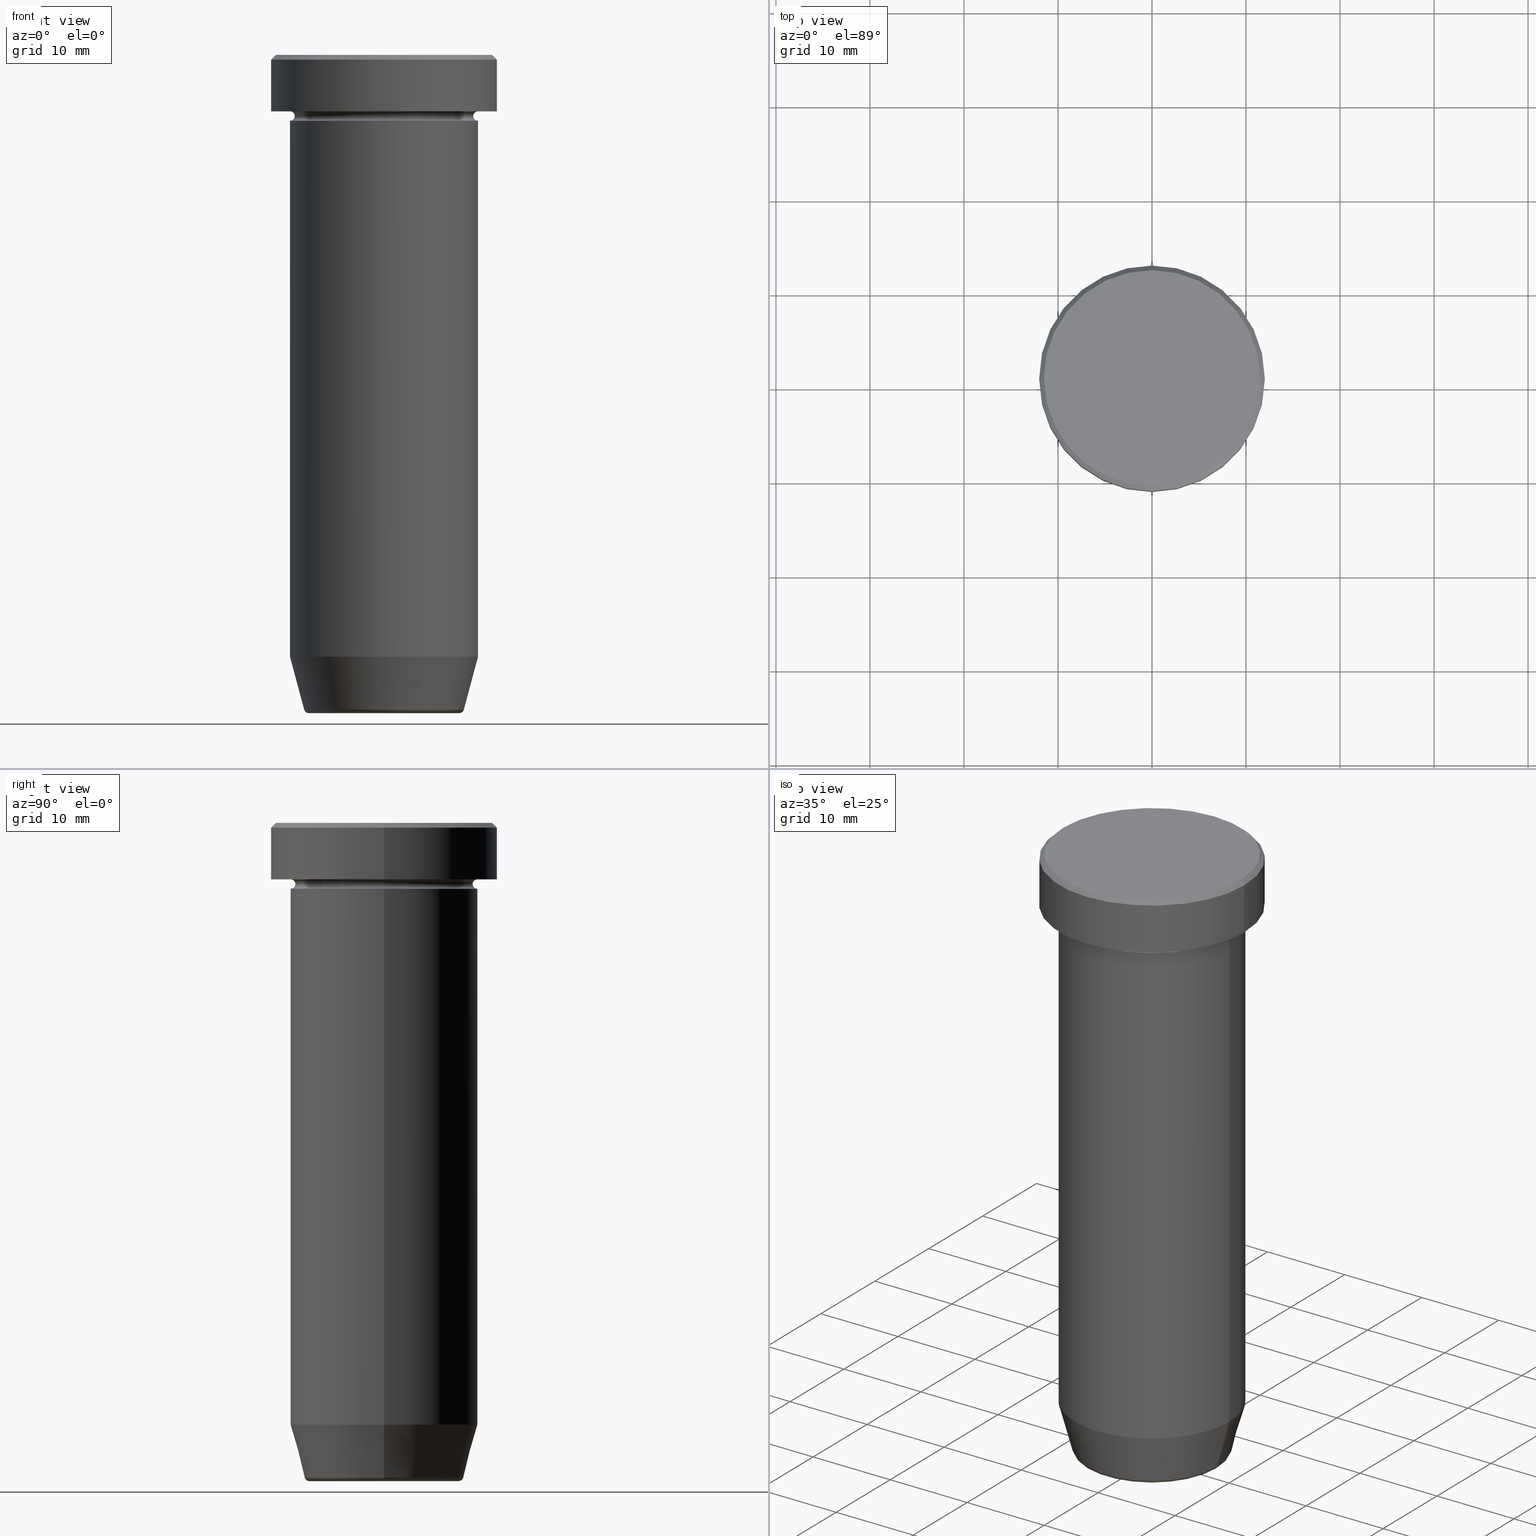
[diagram: canonical four-view strip — front | top / right | iso, engineering-drawing reading convention]
A machine part, canonical four-view strip (front | top / right | iso — engineering-drawing reading convention). The complete STEP part file that produces these views, byte-faithful:
ISO-10303-21;
HEADER;
FILE_DESCRIPTION (( 'STEP AP203' ),
    '1' );
FILE_NAME ('00f0.STEP',
    '2024-01-02T20:49:41',
    ( '' ),
    ( '' ),
    'SwSTEP 2.0',
    'SolidWorks 2019',
    '' );
FILE_SCHEMA (( 'CONFIG_CONTROL_DESIGN' ));
ENDSEC;

DATA;
#1 = DIRECTION ( 'NONE',  ( 0.000000000000000000, 0.000000000000000000, -1.000000000000000000 ) ) ;
#2 = DIRECTION ( 'NONE',  ( 1.000000000000000000, 0.000000000000000000, 0.000000000000000000 ) ) ;
#3 = CONICAL_SURFACE ( 'NONE', #212, 8.392304845413260495, 0.2617993877991495744 ) ;
#4 = APPROVAL_DATE_TIME ( #184, #68 ) ;
#5 = CARTESIAN_POINT ( 'NONE',  ( -9.999999999999998224, 1.224646799147353059E-15, -64.00000000000000000 ) ) ;
#6 = LINE ( 'NONE', #239, #550 ) ;
#7 = CIRCLE ( 'NONE', #414, 0.5000000000000004441 ) ;
#8 = DIRECTION ( 'NONE',  ( 1.000000000000000000, 0.000000000000000000, 0.000000000000000000 ) ) ;
#9 = FACE_OUTER_BOUND ( 'NONE', #29, .T. ) ;
#10 = ORIENTED_EDGE ( 'NONE', *, *, #152, .F. ) ;
#11 = LINE ( 'NONE', #98, #538 ) ;
#12 = ORIENTED_EDGE ( 'NONE', *, *, #391, .F. ) ;
#13 = DIRECTION ( 'NONE',  ( 0.000000000000000000, 0.000000000000000000, -1.000000000000000000 ) ) ;
#14 = APPLICATION_CONTEXT ( 'configuration controlled 3d designs of mechanical parts and assemblies' ) ;
#15 = ADVANCED_FACE ( 'NONE', ( #166 ), #254, .T. ) ;
#16 = AXIS2_PLACEMENT_3D ( 'NONE', #332, #100, #206 ) ;
#17 = DIRECTION ( 'NONE',  ( -1.000000000000000000, 1.224646799147353454E-16, 0.000000000000000000 ) ) ;
#18 = APPROVAL ( #317, 'NEUR�EN�' ) ;
#19 = CARTESIAN_POINT ( 'NONE',  ( 0.000000000000000000, 0.000000000000000000, -70.00000000000000000 ) ) ;
#20 = CARTESIAN_POINT ( 'NONE',  ( 0.000000000000000000, 0.000000000000000000, 0.000000000000000000 ) ) ;
#21 = ORIENTED_EDGE ( 'NONE', *, *, #297, .T. ) ;
#22 = CIRCLE ( 'NONE', #49, 10.00000000000000000 ) ;
#23 = ORIENTED_EDGE ( 'NONE', *, *, #104, .F. ) ;
#24 = VERTEX_POINT ( 'NONE', #272 ) ;
#25 = DIRECTION ( 'NONE',  ( 1.000000000000000000, 0.000000000000000000, 0.000000000000000000 ) ) ;
#26 =( NAMED_UNIT ( * ) SI_UNIT ( $, .STERADIAN. ) SOLID_ANGLE_UNIT ( ) );
#27 = CIRCLE ( 'NONE', #242, 12.00000000000000000 ) ;
#28 = CARTESIAN_POINT ( 'NONE',  ( 0.000000000000000000, 0.000000000000000000, -64.00000000000000000 ) ) ;
#29 = EDGE_LOOP ( 'NONE', ( #244, #160, #574, #107 ) ) ;
#30 = CARTESIAN_POINT ( 'NONE',  ( 0.000000000000000000, 0.000000000000000000, -69.62940952255125637 ) ) ;
#31 = TOROIDAL_SURFACE ( 'NONE', #16, 10.00000000000000000, 0.5000000000000000000 ) ;
#32 = AXIS2_PLACEMENT_3D ( 'NONE', #72, #62, #249 ) ;
#33 = AXIS2_PLACEMENT_3D ( 'NONE', #313, #464, #472 ) ;
#34 = PLANE ( 'NONE',  #159 ) ;
#35 = APPROVAL_ROLE ( '' ) ;
#36 = DIRECTION ( 'NONE',  ( -0.000000000000000000, -0.000000000000000000, 1.000000000000000000 ) ) ;
#37 = DIRECTION ( 'NONE',  ( -1.000000000000000000, 0.000000000000000000, 0.000000000000000000 ) ) ;
#38 = CIRCLE ( 'NONE', #483, 8.008641351423779753 ) ;
#39 = PERSON_AND_ORGANIZATION ( #382, #593 ) ;
#40 = DIRECTION ( 'NONE',  ( -0.000000000000000000, -0.000000000000000000, 1.000000000000000000 ) ) ;
#41 = EDGE_CURVE ( 'NONE', #509, #353, #554, .T. ) ;
#42 = LINE ( 'NONE', #372, #497 ) ;
#43 = CARTESIAN_POINT ( 'NONE',  ( 0.000000000000000000, 0.000000000000000000, -6.499999999999999112 ) ) ;
#44 = DIRECTION ( 'NONE',  ( -0.000000000000000000, -0.000000000000000000, 1.000000000000000000 ) ) ;
#45 = ORIENTED_EDGE ( 'NONE', *, *, #195, .F. ) ;
#46 = TOROIDAL_SURFACE ( 'NONE', #218, 8.008641351423779753, 0.5000000000000000000 ) ;
#47 = DIRECTION ( 'NONE',  ( -0.000000000000000000, -0.000000000000000000, 1.000000000000000000 ) ) ;
#48 = DIRECTION ( 'NONE',  ( -0.000000000000000000, -0.000000000000000000, 1.000000000000000000 ) ) ;
#49 = AXIS2_PLACEMENT_3D ( 'NONE', #418, #278, #2 ) ;
#50 = CC_DESIGN_PERSON_AND_ORGANIZATION_ASSIGNMENT ( #465, #416, ( #546 ) ) ;
#51 = ADVANCED_FACE ( 'NONE', ( #60 ), #437, .T. ) ;
#52 = EDGE_CURVE ( 'NONE', #243, #515, #371, .T. ) ;
#53 = ORIENTED_EDGE ( 'NONE', *, *, #190, .T. ) ;
#54 = ORIENTED_EDGE ( 'NONE', *, *, #598, .T. ) ;
#55 = DIRECTION ( 'NONE',  ( -0.000000000000000000, -0.000000000000000000, 1.000000000000000000 ) ) ;
#56 = DIRECTION ( 'NONE',  ( 1.000000000000000000, 0.000000000000000000, 0.000000000000000000 ) ) ;
#57 = VERTEX_POINT ( 'NONE', #326 ) ;
#58 = TOROIDAL_SURFACE ( 'NONE', #597, 10.00000000000000000, 0.5000000000000000000 ) ;
#59 = ADVANCED_FACE ( 'NONE', ( #284 ), #478, .T. ) ;
#60 = FACE_OUTER_BOUND ( 'NONE', #547, .T. ) ;
#61 = DIRECTION ( 'NONE',  ( -0.000000000000000000, -0.000000000000000000, 1.000000000000000000 ) ) ;
#62 = DIRECTION ( 'NONE',  ( -0.000000000000000000, -0.000000000000000000, 1.000000000000000000 ) ) ;
#63 = APPLICATION_CONTEXT ( 'configuration controlled 3d designs of mechanical parts and assemblies' ) ;
#64 = ORIENTED_EDGE ( 'NONE', *, *, #598, .F. ) ;
#65 = DIRECTION ( 'NONE',  ( 1.224646799147353207E-16, 1.000000000000000000, 0.000000000000000000 ) ) ;
#66 = DIRECTION ( 'NONE',  ( -0.000000000000000000, -0.000000000000000000, 1.000000000000000000 ) ) ;
#67 = TOROIDAL_SURFACE ( 'NONE', #179, 8.008641351423779753, 0.5000000000000000000 ) ;
#68 = APPROVAL ( #573, 'NEUR�EN�' ) ;
#69 = CARTESIAN_POINT ( 'NONE',  ( 9.999999999999998224, 0.000000000000000000, -64.00000000000000000 ) ) ;
#70 = EDGE_LOOP ( 'NONE', ( #12, #451, #368, #274 ) ) ;
#71 = APPROVAL_PERSON_ORGANIZATION ( #79, #348, #35 ) ;
#72 = CARTESIAN_POINT ( 'NONE',  ( 0.000000000000000000, 0.000000000000000000, -6.000000000000000000 ) ) ;
#73 = VERTEX_POINT ( 'NONE', #275 ) ;
#74 = MECHANICAL_CONTEXT ( 'NONE', #63, 'mechanical' ) ;
#75 = ORIENTED_EDGE ( 'NONE', *, *, #263, .F. ) ;
#76 = ADVANCED_FACE ( 'NONE', ( #423 ), #569, .T. ) ;
#77 = CIRCLE ( 'NONE', #87, 8.008641351423779753 ) ;
#78 =( NAMED_UNIT ( * ) PLANE_ANGLE_UNIT ( ) SI_UNIT ( $, .RADIAN. ) );
#79 = PERSON_AND_ORGANIZATION ( #382, #593 ) ;
#80 = CARTESIAN_POINT ( 'NONE',  ( -10.00000000000000000, 0.000000000000000000, -6.500000000000000888 ) ) ;
#81 = CARTESIAN_POINT ( 'NONE',  ( -9.500000000000000000, 1.194030629168669469E-15, -6.499999999999999112 ) ) ;
#82 = FACE_OUTER_BOUND ( 'NONE', #204, .T. ) ;
#83 = DATE_AND_TIME ( #128, #298 ) ;
#84 = EDGE_CURVE ( 'NONE', #209, #501, #357, .T. ) ;
#85 = ORIENTED_EDGE ( 'NONE', *, *, #169, .T. ) ;
#86 = CARTESIAN_POINT ( 'NONE',  ( -10.00000000000000000, 1.224646799147353256E-15, -17.50000000000000000 ) ) ;
#87 = AXIS2_PLACEMENT_3D ( 'NONE', #514, #524, #165 ) ;
#88 = PLANE ( 'NONE',  #93 ) ;
#89 = EDGE_LOOP ( 'NONE', ( #21, #527 ) ) ;
#90 = EDGE_CURVE ( 'NONE', #347, #281, #321, .T. ) ;
#91 = DIRECTION ( 'NONE',  ( 1.000000000000000000, 0.000000000000000000, 0.000000000000000000 ) ) ;
#92 = ORIENTED_EDGE ( 'NONE', *, *, #169, .F. ) ;
#93 = AXIS2_PLACEMENT_3D ( 'NONE', #404, #555, #314 ) ;
#94 = EDGE_LOOP ( 'NONE', ( #255, #588 ) ) ;
#95 = DIRECTION ( 'NONE',  ( -0.000000000000000000, -0.000000000000000000, 1.000000000000000000 ) ) ;
#96 = DIRECTION ( 'NONE',  ( 1.000000000000000000, 0.000000000000000000, 0.000000000000000000 ) ) ;
#97 = DIRECTION ( 'NONE',  ( 0.000000000000000000, 0.000000000000000000, -1.000000000000000000 ) ) ;
#98 = CARTESIAN_POINT ( 'NONE',  ( 8.392304845413260495, 0.000000000000000000, -70.00000000000000000 ) ) ;
#99 = ORIENTED_EDGE ( 'NONE', *, *, #104, .T. ) ;
#100 = DIRECTION ( 'NONE',  ( -0.000000000000000000, -0.000000000000000000, 1.000000000000000000 ) ) ;
#101 = FACE_OUTER_BOUND ( 'NONE', #304, .T. ) ;
#102 = DIRECTION ( 'NONE',  ( 1.000000000000000000, 0.000000000000000000, 0.000000000000000000 ) ) ;
#103 = EDGE_CURVE ( 'NONE', #509, #262, #237, .T. ) ;
#104 = EDGE_CURVE ( 'NONE', #406, #163, #393, .T. ) ;
#105 = CIRCLE ( 'NONE', #522, 9.500000000000000000 ) ;
#106 = ORIENTED_EDGE ( 'NONE', *, *, #123, .T. ) ;
#107 = ORIENTED_EDGE ( 'NONE', *, *, #123, .F. ) ;
#108 = ADVANCED_FACE ( 'NONE', ( #469 ), #421, .T. ) ;
#109 = TOROIDAL_SURFACE ( 'NONE', #462, 10.00000000000000000, 0.5000000000000000000 ) ;
#110 = DIRECTION ( 'NONE',  ( -1.000000000000000000, 0.000000000000000000, 0.000000000000000000 ) ) ;
#111 = PRODUCT_DEFINITION ( 'NEZN�M�', '', #546, #400 ) ;
#112 = DIRECTION ( 'NONE',  ( 0.000000000000000000, -0.000000000000000000, 1.000000000000000000 ) ) ;
#113 = AXIS2_PLACEMENT_3D ( 'NONE', #431, #221, #8 ) ;
#114 = CIRCLE ( 'NONE', #283, 10.00000000000000000 ) ;
#115 = EDGE_LOOP ( 'NONE', ( #477, #456, #139, #125 ) ) ;
#116 = LOCAL_TIME ( 21, 49, 41.00000000000000000, #164 ) ;
#117 = DIRECTION ( 'NONE',  ( 0.000000000000000000, 0.000000000000000000, -1.000000000000000000 ) ) ;
#118 = DIRECTION ( 'NONE',  ( 0.000000000000000000, 0.000000000000000000, 1.000000000000000000 ) ) ;
#119 = ORIENTED_EDGE ( 'NONE', *, *, #84, .F. ) ;
#120 = DIRECTION ( 'NONE',  ( -1.000000000000000000, 0.000000000000000000, 0.000000000000000000 ) ) ;
#121 = AXIS2_PLACEMENT_3D ( 'NONE', #521, #385, #419 ) ;
#122 = DATE_AND_TIME ( #308, #340 ) ;
#123 = EDGE_CURVE ( 'NONE', #327, #226, #492, .T. ) ;
#124 = ORIENTED_EDGE ( 'NONE', *, *, #192, .T. ) ;
#125 = ORIENTED_EDGE ( 'NONE', *, *, #436, .F. ) ;
#126 = PERSON_AND_ORGANIZATION_ROLE ( 'design_owner' ) ;
#127 = APPROVAL_PERSON_ORGANIZATION ( #39, #68, #175 ) ;
#128 = CALENDAR_DATE ( 2024, 2, 1 ) ;
#129 = DIRECTION ( 'NONE',  ( 0.000000000000000000, 0.000000000000000000, -1.000000000000000000 ) ) ;
#130 = CARTESIAN_POINT ( 'NONE',  ( 10.00000000000000000, 1.224646799147353256E-15, -6.500000000000000888 ) ) ;
#131 = ADVANCED_FACE ( 'NONE', ( #510 ), #58, .F. ) ;
#132 = CARTESIAN_POINT ( 'NONE',  ( -8.008641351423779753, 1.010348648938493172E-15, -70.00000000000000000 ) ) ;
#133 = AXIS2_PLACEMENT_3D ( 'NONE', #174, #518, #91 ) ;
#134 = DIRECTION ( 'NONE',  ( -1.000000000000000000, 0.000000000000000000, -0.000000000000000000 ) ) ;
#135 = CARTESIAN_POINT ( 'NONE',  ( 0.000000000000000000, 0.000000000000000000, -17.50000000000000000 ) ) ;
#136 = EDGE_CURVE ( 'NONE', #301, #209, #77, .T. ) ;
#137 = CARTESIAN_POINT ( 'NONE',  ( 0.000000000000000000, 0.000000000000000000, 0.000000000000000000 ) ) ;
#138 = CLOSED_SHELL ( 'NONE', ( #413, #339, #131, #180, #311, #51, #59, #108, #540, #76, #430, #488, #15 ) ) ;
#139 = ORIENTED_EDGE ( 'NONE', *, *, #445, .T. ) ;
#140 = DIRECTION ( 'NONE',  ( -0.000000000000000000, -0.000000000000000000, 1.000000000000000000 ) ) ;
#141 = DIRECTION ( 'NONE',  ( -0.000000000000000000, -0.000000000000000000, 1.000000000000000000 ) ) ;
#142 = FACE_OUTER_BOUND ( 'NONE', #269, .T. ) ;
#143 = VECTOR ( 'NONE', #95, 1000.000000000000000 ) ;
#144 = DATE_TIME_ROLE ( 'classification_date' ) ;
#145 = DIRECTION ( 'NONE',  ( 0.7071067811865425767, 8.659560562354873694E-17, -0.7071067811865525687 ) ) ;
#146 = AXIS2_PLACEMENT_3D ( 'NONE', #266, #459, #519 ) ;
#147 = EDGE_CURVE ( 'NONE', #515, #73, #210, .T. ) ;
#148 = CIRCLE ( 'NONE', #260, 10.00000000000000000 ) ;
#149 = AXIS2_PLACEMENT_3D ( 'NONE', #367, #129, #172 ) ;
#150 = ORIENTED_EDGE ( 'NONE', *, *, #375, .T. ) ;
#151 = ORIENTED_EDGE ( 'NONE', *, *, #195, .T. ) ;
#152 = EDGE_CURVE ( 'NONE', #259, #411, #148, .T. ) ;
#153 = ADVANCED_FACE ( 'NONE', ( #556 ), #450, .F. ) ;
#154 = ORIENTED_EDGE ( 'NONE', *, *, #216, .T. ) ;
#155 = DIRECTION ( 'NONE',  ( -0.000000000000000000, -0.000000000000000000, 1.000000000000000000 ) ) ;
#156 = CYLINDRICAL_SURFACE ( 'NONE', #349, 10.00000000000000000 ) ;
#157 = ORIENTED_EDGE ( 'NONE', *, *, #316, .T. ) ;
#158 = CARTESIAN_POINT ( 'NONE',  ( 0.000000000000000000, 2.449293598294707302E-15, -70.00000000000000000 ) ) ;
#159 = AXIS2_PLACEMENT_3D ( 'NONE', #191, #97, #134 ) ;
#160 = ORIENTED_EDGE ( 'NONE', *, *, #90, .T. ) ;
#161 = CONICAL_SURFACE ( 'NONE', #246, 11.49999999999999822, 0.7853981633974412846 ) ;
#162 = APPROVAL_ROLE ( '' ) ;
#163 = VERTEX_POINT ( 'NONE', #231 ) ;
#164 = COORDINATED_UNIVERSAL_TIME_OFFSET ( 1, 0, .AHEAD. ) ;
#165 = DIRECTION ( 'NONE',  ( 1.000000000000000000, 0.000000000000000000, 0.000000000000000000 ) ) ;
#166 = FACE_OUTER_BOUND ( 'NONE', #441, .T. ) ;
#167 = DIRECTION ( 'NONE',  ( -0.000000000000000000, -0.000000000000000000, 1.000000000000000000 ) ) ;
#168 = CC_DESIGN_DATE_AND_TIME_ASSIGNMENT ( #280, #144, ( #470 ) ) ;
#169 = EDGE_CURVE ( 'NONE', #558, #293, #105, .T. ) ;
#170 = DIRECTION ( 'NONE',  ( 0.000000000000000000, 0.000000000000000000, -1.000000000000000000 ) ) ;
#171 = PERSON_AND_ORGANIZATION ( #382, #593 ) ;
#172 = DIRECTION ( 'NONE',  ( -1.000000000000000000, 0.000000000000000000, 0.000000000000000000 ) ) ;
#173 = CONICAL_SURFACE ( 'NONE', #471, 8.392304845413260495, 0.2617993877991495744 ) ;
#174 = CARTESIAN_POINT ( 'NONE',  ( 0.000000000000000000, 0.000000000000000000, -6.999999999999999112 ) ) ;
#175 = APPROVAL_ROLE ( '' ) ;
#176 = CYLINDRICAL_SURFACE ( 'NONE', #288, 9.999999999999998224 ) ;
#177 = PRODUCT_DEFINITION_SHAPE ( 'NONE', 'NONE',  #111 ) ;
#178 = DIRECTION ( 'NONE',  ( -0.000000000000000000, -0.000000000000000000, 1.000000000000000000 ) ) ;
#179 = AXIS2_PLACEMENT_3D ( 'NONE', #228, #140, #374 ) ;
#180 = ADVANCED_FACE ( 'NONE', ( #506 ), #156, .T. ) ;
#181 = ORIENTED_EDGE ( 'NONE', *, *, #227, .F. ) ;
#182 = CARTESIAN_POINT ( 'NONE',  ( 0.000000000000000000, 0.000000000000000000, 0.000000000000000000 ) ) ;
#183 = CIRCLE ( 'NONE', #390, 8.491604264568310967 ) ;
#184 = DATE_AND_TIME ( #568, #561 ) ;
#185 = ORIENTED_EDGE ( 'NONE', *, *, #152, .T. ) ;
#186 = CARTESIAN_POINT ( 'NONE',  ( 8.008641351423779753, 0.000000000000000000, -69.50000000000000000 ) ) ;
#187 = ORIENTED_EDGE ( 'NONE', *, *, #276, .F. ) ;
#188 = DIRECTION ( 'NONE',  ( -1.000000000000000000, 0.000000000000000000, 0.000000000000000000 ) ) ;
#189 = SHAPE_DEFINITION_REPRESENTATION ( #177, #335 ) ;
#190 = EDGE_CURVE ( 'NONE', #57, #501, #578, .T. ) ;
#191 = CARTESIAN_POINT ( 'NONE',  ( 0.000000000000000000, -3.469446951953614189E-15, -17.50000000000000000 ) ) ;
#192 = EDGE_CURVE ( 'NONE', #293, #259, #7, .T. ) ;
#193 = CIRCLE ( 'NONE', #292, 0.5000000000000004441 ) ;
#194 = ORIENTED_EDGE ( 'NONE', *, *, #227, .T. ) ;
#195 = EDGE_CURVE ( 'NONE', #515, #243, #114, .T. ) ;
#196 = EDGE_LOOP ( 'NONE', ( #285, #151, #420, #461 ) ) ;
#197 = AXIS2_PLACEMENT_3D ( 'NONE', #158, #112, #356 ) ;
#198 = ORIENTED_EDGE ( 'NONE', *, *, #263, .T. ) ;
#199 = ORIENTED_EDGE ( 'NONE', *, *, #436, .T. ) ;
#200 = CIRCLE ( 'NONE', #500, 9.999999999999998224 ) ;
#201 = ORIENTED_EDGE ( 'NONE', *, *, #147, .T. ) ;
#202 = FACE_OUTER_BOUND ( 'NONE', #70, .T. ) ;
#203 = ADVANCED_FACE ( 'NONE', ( #9 ), #352, .T. ) ;
#204 = EDGE_LOOP ( 'NONE', ( #553, #494, #392, #503 ) ) ;
#205 = ORIENTED_EDGE ( 'NONE', *, *, #240, .T. ) ;
#206 = DIRECTION ( 'NONE',  ( 1.000000000000000000, 0.000000000000000000, 0.000000000000000000 ) ) ;
#207 = VECTOR ( 'NONE', #178, 1000.000000000000000 ) ;
#208 = APPLICATION_PROTOCOL_DEFINITION ( 'international standard', 'config_control_design', 1994, #14 ) ;
#209 = VERTEX_POINT ( 'NONE', #442 ) ;
#210 = LINE ( 'NONE', #599, #549 ) ;
#211 = DIRECTION ( 'NONE',  ( -0.000000000000000000, -0.000000000000000000, 1.000000000000000000 ) ) ;
#212 = AXIS2_PLACEMENT_3D ( 'NONE', #428, #141, #102 ) ;
#213 = EDGE_LOOP ( 'NONE', ( #517, #528, #10, #504 ) ) ;
#214 = CARTESIAN_POINT ( 'NONE',  ( 0.000000000000000000, 0.000000000000000000, -6.499999999999999112 ) ) ;
#215 = AXIS2_PLACEMENT_3D ( 'NONE', #186, #235, #577 ) ;
#216 = EDGE_CURVE ( 'NONE', #353, #509, #466, .T. ) ;
#217 = DIRECTION ( 'NONE',  ( 1.000000000000000000, 0.000000000000000000, 0.000000000000000000 ) ) ;
#218 = AXIS2_PLACEMENT_3D ( 'NONE', #589, #155, #543 ) ;
#219 = CARTESIAN_POINT ( 'NONE',  ( 0.000000000000000000, 0.000000000000000000, 0.000000000000000000 ) ) ;
#220 = CC_DESIGN_APPROVAL ( #18, ( #111 ) ) ;
#221 = DIRECTION ( 'NONE',  ( -0.000000000000000000, -0.000000000000000000, 1.000000000000000000 ) ) ;
#222 = SECURITY_CLASSIFICATION_LEVEL ( 'unclassified' ) ;
#223 = DIRECTION ( 'NONE',  ( -0.000000000000000000, -0.000000000000000000, 1.000000000000000000 ) ) ;
#224 = CIRCLE ( 'NONE', #32, 10.00000000000000000 ) ;
#225 = DIRECTION ( 'NONE',  ( 1.000000000000000000, 0.000000000000000000, 0.000000000000000000 ) ) ;
#226 = VERTEX_POINT ( 'NONE', #310 ) ;
#227 = EDGE_CURVE ( 'NONE', #322, #262, #329, .T. ) ;
#228 = CARTESIAN_POINT ( 'NONE',  ( 0.000000000000000000, 0.000000000000000000, -69.50000000000000000 ) ) ;
#229 = AXIS2_PLACEMENT_3D ( 'NONE', #452, #365, #25 ) ;
#230 = DIRECTION ( 'NONE',  ( 1.000000000000000000, 0.000000000000000000, 0.000000000000000000 ) ) ;
#231 = CARTESIAN_POINT ( 'NONE',  ( 12.00000000000000000, 0.000000000000000000, -5.999999999999999112 ) ) ;
#232 = CARTESIAN_POINT ( 'NONE',  ( 12.00000000000000000, 0.000000000000000000, 0.000000000000000000 ) ) ;
#233 = DIRECTION ( 'NONE',  ( -1.000000000000000000, -1.224646799147353454E-16, 0.000000000000000000 ) ) ;
#234 = DIRECTION ( 'NONE',  ( -0.000000000000000000, -0.000000000000000000, 1.000000000000000000 ) ) ;
#235 = DIRECTION ( 'NONE',  ( 0.000000000000000000, -1.000000000000000000, 0.000000000000000000 ) ) ;
#236 = DIRECTION ( 'NONE',  ( 1.000000000000000000, 0.000000000000000000, 0.000000000000000000 ) ) ;
#237 = LINE ( 'NONE', #433, #541 ) ;
#238 = AXIS2_PLACEMENT_3D ( 'NONE', #135, #286, #236 ) ;
#239 = CARTESIAN_POINT ( 'NONE',  ( 11.49999999999999822, 1.408343819019455979E-15, 0.000000000000000000 ) ) ;
#240 = EDGE_CURVE ( 'NONE', #262, #322, #27, .T. ) ;
#241 = DIRECTION ( 'NONE',  ( 1.000000000000000000, 0.000000000000000000, 0.000000000000000000 ) ) ;
#242 = AXIS2_PLACEMENT_3D ( 'NONE', #403, #507, #257 ) ;
#243 = VERTEX_POINT ( 'NONE', #458 ) ;
#244 = ORIENTED_EDGE ( 'NONE', *, *, #336, .T. ) ;
#245 = CARTESIAN_POINT ( 'NONE',  ( -8.008641351423779753, 9.807756996540264321E-16, -69.50000000000000000 ) ) ;
#246 = AXIS2_PLACEMENT_3D ( 'NONE', #585, #447, #188 ) ;
#247 = ADVANCED_FACE ( 'NONE', ( #359 ), #34, .F. ) ;
#248 = EDGE_CURVE ( 'NONE', #406, #262, #364, .T. ) ;
#249 = DIRECTION ( 'NONE',  ( -1.000000000000000000, 0.000000000000000000, 0.000000000000000000 ) ) ;
#250 = CARTESIAN_POINT ( 'NONE',  ( 0.000000000000000000, 0.000000000000000000, -5.999999999999999112 ) ) ;
#251 = EDGE_CURVE ( 'NONE', #281, #226, #22, .T. ) ;
#252 =( GEOMETRIC_REPRESENTATION_CONTEXT ( 3 ) GLOBAL_UNCERTAINTY_ASSIGNED_CONTEXT ( ( #337 ) ) GLOBAL_UNIT_ASSIGNED_CONTEXT ( ( #596, #78, #26 ) ) REPRESENTATION_CONTEXT ( 'NONE', 'WORKASPACE' ) );
#253 = CARTESIAN_POINT ( 'NONE',  ( 8.491604264568310967, 0.000000000000000000, -69.62940952255125637 ) ) ;
#254 = CONICAL_SURFACE ( 'NONE', #346, 11.49999999999999822, 0.7853981633974412846 ) ;
#255 = ORIENTED_EDGE ( 'NONE', *, *, #511, .T. ) ;
#256 = ORIENTED_EDGE ( 'NONE', *, *, #216, .F. ) ;
#257 = DIRECTION ( 'NONE',  ( 1.000000000000000000, 0.000000000000000000, 0.000000000000000000 ) ) ;
#258 = DIRECTION ( 'NONE',  ( 1.000000000000000000, 0.000000000000000000, 0.000000000000000000 ) ) ;
#259 = VERTEX_POINT ( 'NONE', #475 ) ;
#260 = AXIS2_PLACEMENT_3D ( 'NONE', #495, #66, #120 ) ;
#261 = APPROVAL_DATE_TIME ( #122, #18 ) ;
#262 = VERTEX_POINT ( 'NONE', #513 ) ;
#263 = EDGE_CURVE ( 'NONE', #24, #73, #319, .T. ) ;
#264 = AXIS2_PLACEMENT_3D ( 'NONE', #250, #584, #341 ) ;
#265 = CARTESIAN_POINT ( 'NONE',  ( 0.000000000000000000, 0.000000000000000000, 0.000000000000000000 ) ) ;
#266 = CARTESIAN_POINT ( 'NONE',  ( -10.00000000000000000, 1.224646799147353256E-15, -6.499999999999999112 ) ) ;
#267 = APPROVAL_DATE_TIME ( #83, #348 ) ;
#268 = ORIENTED_EDGE ( 'NONE', *, *, #251, .F. ) ;
#269 = EDGE_LOOP ( 'NONE', ( #277, #23 ) ) ;
#270 = DIRECTION ( 'NONE',  ( -0.7071067811865425767, 0.000000000000000000, -0.7071067811865525687 ) ) ;
#271 = CARTESIAN_POINT ( 'NONE',  ( 10.00000000000000000, 0.000000000000000000, 0.000000000000000000 ) ) ;
#272 = CARTESIAN_POINT ( 'NONE',  ( 10.00000000000000000, 0.000000000000000000, -6.999999999999999112 ) ) ;
#273 = DIRECTION ( 'NONE',  ( -0.000000000000000000, -0.000000000000000000, 1.000000000000000000 ) ) ;
#274 = ORIENTED_EDGE ( 'NONE', *, *, #190, .F. ) ;
#275 = CARTESIAN_POINT ( 'NONE',  ( -10.00000000000000000, 1.224646799147353256E-15, -6.999999999999999112 ) ) ;
#276 = EDGE_CURVE ( 'NONE', #57, #347, #42, .T. ) ;
#277 = ORIENTED_EDGE ( 'NONE', *, *, #453, .F. ) ;
#278 = DIRECTION ( 'NONE',  ( -0.000000000000000000, -0.000000000000000000, 1.000000000000000000 ) ) ;
#279 = DIRECTION ( 'NONE',  ( 1.000000000000000000, 0.000000000000000000, 0.000000000000000000 ) ) ;
#280 = DATE_AND_TIME ( #537, #580 ) ;
#281 = VERTEX_POINT ( 'NONE', #86 ) ;
#282 = DIRECTION ( 'NONE',  ( 0.2588190451025209060, 0.000000000000000000, 0.9659258262890682012 ) ) ;
#283 = AXIS2_PLACEMENT_3D ( 'NONE', #533, #234, #96 ) ;
#284 = FACE_OUTER_BOUND ( 'NONE', #523, .T. ) ;
#285 = ORIENTED_EDGE ( 'NONE', *, *, #147, .F. ) ;
#286 = DIRECTION ( 'NONE',  ( -0.000000000000000000, -0.000000000000000000, 1.000000000000000000 ) ) ;
#287 = EDGE_LOOP ( 'NONE', ( #412, #99, #592, #194 ) ) ;
#288 = AXIS2_PLACEMENT_3D ( 'NONE', #309, #473, #217 ) ;
#289 = FACE_BOUND ( 'NONE', #422, .T. ) ;
#290 = EDGE_CURVE ( 'NONE', #163, #322, #381, .T. ) ;
#291 = DIRECTION ( 'NONE',  ( 1.000000000000000000, 0.000000000000000000, 0.000000000000000000 ) ) ;
#292 = AXIS2_PLACEMENT_3D ( 'NONE', #563, #320, #1 ) ;
#293 = VERTEX_POINT ( 'NONE', #81 ) ;
#294 = VECTOR ( 'NONE', #330, 1000.000000000000000 ) ;
#295 = DIRECTION ( 'NONE',  ( 1.000000000000000000, 0.000000000000000000, 0.000000000000000000 ) ) ;
#296 = ADVANCED_FACE ( 'NONE', ( #536 ), #67, .T. ) ;
#297 = EDGE_CURVE ( 'NONE', #226, #281, #389, .T. ) ;
#298 = LOCAL_TIME ( 21, 49, 41.00000000000000000, #560 ) ;
#299 = EDGE_LOOP ( 'NONE', ( #256, #150, #399, #384 ) ) ;
#300 = EDGE_CURVE ( 'NONE', #558, #411, #338, .T. ) ;
#301 = VERTEX_POINT ( 'NONE', #132 ) ;
#302 = MANIFOLD_SOLID_BREP ( 'Zkosen�1', #138 ) ;
#303 = PERSON_AND_ORGANIZATION ( #382, #593 ) ;
#304 = EDGE_LOOP ( 'NONE', ( #552, #92, #199, #198 ) ) ;
#305 = MANIFOLD_SOLID_BREP ( 'Zaoblit4', #440 ) ;
#306 = AXIS2_PLACEMENT_3D ( 'NONE', #534, #223, #230 ) ;
#307 = EDGE_CURVE ( 'NONE', #243, #24, #525, .T. ) ;
#308 = CALENDAR_DATE ( 2024, 2, 1 ) ;
#309 = CARTESIAN_POINT ( 'NONE',  ( 0.000000000000000000, 0.000000000000000000, 0.000000000000000000 ) ) ;
#310 = CARTESIAN_POINT ( 'NONE',  ( 10.00000000000000000, 0.000000000000000000, -17.50000000000000000 ) ) ;
#311 = ADVANCED_FACE ( 'NONE', ( #379 ), #530, .T. ) ;
#312 = CIRCLE ( 'NONE', #146, 0.5000000000000004441 ) ;
#313 = CARTESIAN_POINT ( 'NONE',  ( 0.000000000000000000, 0.000000000000000000, 0.000000000000000000 ) ) ;
#314 = DIRECTION ( 'NONE',  ( -1.000000000000000000, 0.000000000000000000, -0.000000000000000000 ) ) ;
#315 = CARTESIAN_POINT ( 'NONE',  ( -12.00000000000000000, 1.469576158976823947E-15, 0.000000000000000000 ) ) ;
#316 = EDGE_CURVE ( 'NONE', #501, #327, #11, .T. ) ;
#317 = APPROVAL_STATUS ( 'not_yet_approved' ) ;
#318 = DIRECTION ( 'NONE',  ( 1.000000000000000000, 0.000000000000000000, 0.000000000000000000 ) ) ;
#319 = CIRCLE ( 'NONE', #133, 10.00000000000000000 ) ;
#320 = DIRECTION ( 'NONE',  ( 0.000000000000000000, -1.000000000000000000, 0.000000000000000000 ) ) ;
#321 = LINE ( 'NONE', #485, #294 ) ;
#322 = VERTEX_POINT ( 'NONE', #342 ) ;
#323 = APPROVAL_PERSON_ORGANIZATION ( #594, #18, #162 ) ;
#324 = CARTESIAN_POINT ( 'NONE',  ( 0.000000000000000000, 0.000000000000000000, -70.00000000000000000 ) ) ;
#325 = CARTESIAN_POINT ( 'NONE',  ( 0.000000000000000000, 0.000000000000000000, -5.999999999999999112 ) ) ;
#326 = CARTESIAN_POINT ( 'NONE',  ( -8.491604264568310967, 1.132284198685156190E-15, -69.62940952255125637 ) ) ;
#327 = VERTEX_POINT ( 'NONE', #69 ) ;
#328 = ADVANCED_FACE ( 'NONE', ( #360 ), #176, .T. ) ;
#329 = CIRCLE ( 'NONE', #229, 12.00000000000000000 ) ;
#330 = DIRECTION ( 'NONE',  ( -0.000000000000000000, -0.000000000000000000, 1.000000000000000000 ) ) ;
#331 = EDGE_LOOP ( 'NONE', ( #402, #345, #205, #545 ) ) ;
#332 = CARTESIAN_POINT ( 'NONE',  ( 0.000000000000000000, 0.000000000000000000, -6.499999999999999112 ) ) ;
#333 = COORDINATED_UNIVERSAL_TIME_OFFSET ( 1, 0, .AHEAD. ) ;
#334 = AXIS2_PLACEMENT_3D ( 'NONE', #476, #47, #291 ) ;
#335 = ADVANCED_BREP_SHAPE_REPRESENTATION ( '00f0', ( #302, #305, #369 ), #252 ) ;
#336 = EDGE_CURVE ( 'NONE', #327, #347, #567, .T. ) ;
#337 = UNCERTAINTY_MEASURE_WITH_UNIT (LENGTH_MEASURE( 1.000000000000000082E-05 ), #596, 'distance_accuracy_value', 'NONE');
#338 = CIRCLE ( 'NONE', #489, 0.5000000000000004441 ) ;
#339 = ADVANCED_FACE ( 'NONE', ( #377 ), #396, .F. ) ;
#340 = LOCAL_TIME ( 21, 49, 41.00000000000000000, #516 ) ;
#341 = DIRECTION ( 'NONE',  ( 1.000000000000000000, 0.000000000000000000, 0.000000000000000000 ) ) ;
#342 = CARTESIAN_POINT ( 'NONE',  ( 12.00000000000000000, 0.000000000000000000, -0.5000000000000092149 ) ) ;
#343 = CARTESIAN_POINT ( 'NONE',  ( 0.000000000000000000, 0.000000000000000000, -69.62940952255125637 ) ) ;
#344 = EDGE_LOOP ( 'NONE', ( #187, #53, #157, #64 ) ) ;
#345 = ORIENTED_EDGE ( 'NONE', *, *, #248, .T. ) ;
#346 = AXIS2_PLACEMENT_3D ( 'NONE', #265, #170, #366 ) ;
#347 = VERTEX_POINT ( 'NONE', #5 ) ;
#348 = APPROVAL ( #463, 'NEUR�EN�' ) ;
#349 = AXIS2_PLACEMENT_3D ( 'NONE', #20, #395, #258 ) ;
#350 = ORIENTED_EDGE ( 'NONE', *, *, #41, .F. ) ;
#351 = DIRECTION ( 'NONE',  ( 0.000000000000000000, 0.000000000000000000, -1.000000000000000000 ) ) ;
#352 = CYLINDRICAL_SURFACE ( 'NONE', #455, 9.999999999999998224 ) ;
#353 = VERTEX_POINT ( 'NONE', #526 ) ;
#354 = CARTESIAN_POINT ( 'NONE',  ( 0.000000000000000000, 0.000000000000000000, 0.000000000000000000 ) ) ;
#355 = EDGE_CURVE ( 'NONE', #293, #558, #448, .T. ) ;
#356 = DIRECTION ( 'NONE',  ( 1.000000000000000000, 0.000000000000000000, 0.000000000000000000 ) ) ;
#357 = CIRCLE ( 'NONE', #215, 0.5000000000000004441 ) ;
#358 = DIRECTION ( 'NONE',  ( -0.000000000000000000, -0.000000000000000000, 1.000000000000000000 ) ) ;
#359 = FACE_OUTER_BOUND ( 'NONE', #89, .T. ) ;
#360 = FACE_OUTER_BOUND ( 'NONE', #449, .T. ) ;
#361 = PRODUCT_RELATED_PRODUCT_CATEGORY ( 'detail', '', ( #460 ) ) ;
#362 = ORIENTED_EDGE ( 'NONE', *, *, #103, .T. ) ;
#363 = VECTOR ( 'NONE', #570, 1000.000000000000000 ) ;
#364 = LINE ( 'NONE', #315, #143 ) ;
#365 = DIRECTION ( 'NONE',  ( 0.000000000000000000, 0.000000000000000000, -1.000000000000000000 ) ) ;
#366 = DIRECTION ( 'NONE',  ( -1.000000000000000000, 0.000000000000000000, 0.000000000000000000 ) ) ;
#367 = CARTESIAN_POINT ( 'NONE',  ( 0.000000000000000000, 0.000000000000000000, -6.500000000000000888 ) ) ;
#368 = ORIENTED_EDGE ( 'NONE', *, *, #84, .T. ) ;
#369 = AXIS2_PLACEMENT_3D ( 'NONE', #354, #118, #559 ) ;
#370 = DIRECTION ( 'NONE',  ( 1.000000000000000000, 0.000000000000000000, 0.000000000000000000 ) ) ;
#371 = CIRCLE ( 'NONE', #238, 10.00000000000000000 ) ;
#372 = CARTESIAN_POINT ( 'NONE',  ( -8.392304845413260495, 1.027760926640417114E-15, -70.00000000000000000 ) ) ;
#373 = CC_DESIGN_PERSON_AND_ORGANIZATION_ASSIGNMENT ( #454, #126, ( #460 ) ) ;
#374 = DIRECTION ( 'NONE',  ( 1.000000000000000000, 0.000000000000000000, 0.000000000000000000 ) ) ;
#375 = EDGE_CURVE ( 'NONE', #353, #322, #6, .T. ) ;
#376 = ORIENTED_EDGE ( 'NONE', *, *, #52, .F. ) ;
#377 = FACE_OUTER_BOUND ( 'NONE', #213, .T. ) ;
#378 = AXIS2_PLACEMENT_3D ( 'NONE', #520, #167, #468 ) ;
#379 = FACE_OUTER_BOUND ( 'NONE', #331, .T. ) ;
#380 = DIRECTION ( 'NONE',  ( -1.000000000000000000, 0.000000000000000000, 0.000000000000000000 ) ) ;
#381 = LINE ( 'NONE', #232, #363 ) ;
#382 = PERSON ( 'NEUR�EN�', 'NEUR�EN�', 'NEUR�EN�', ('NEUR�EN�'), ('NEUR�EN�'), ('NEUR�EN�') ) ;
#383 = DIRECTION ( 'NONE',  ( -0.000000000000000000, -0.000000000000000000, 1.000000000000000000 ) ) ;
#384 = ORIENTED_EDGE ( 'NONE', *, *, #103, .F. ) ;
#385 = DIRECTION ( 'NONE',  ( 0.000000000000000000, -0.000000000000000000, 1.000000000000000000 ) ) ;
#386 = CIRCLE ( 'NONE', #264, 12.00000000000000000 ) ;
#387 = CARTESIAN_POINT ( 'NONE',  ( -10.00000000000000000, 1.224646799147353256E-15, -17.50000000000000000 ) ) ;
#388 = PERSON_AND_ORGANIZATION ( #382, #593 ) ;
#389 = CIRCLE ( 'NONE', #113, 10.00000000000000000 ) ;
#390 = AXIS2_PLACEMENT_3D ( 'NONE', #30, #211, #37 ) ;
#391 = EDGE_CURVE ( 'NONE', #301, #57, #407, .T. ) ;
#392 = ORIENTED_EDGE ( 'NONE', *, *, #336, .F. ) ;
#393 = CIRCLE ( 'NONE', #426, 12.00000000000000000 ) ;
#394 = FACE_OUTER_BOUND ( 'NONE', #299, .T. ) ;
#395 = DIRECTION ( 'NONE',  ( -0.000000000000000000, -0.000000000000000000, 1.000000000000000000 ) ) ;
#396 = TOROIDAL_SURFACE ( 'NONE', #149, 10.00000000000000000, 0.5000000000000000000 ) ;
#397 = ORIENTED_EDGE ( 'NONE', *, *, #307, .F. ) ;
#398 = ORIENTED_EDGE ( 'NONE', *, *, #300, .F. ) ;
#399 = ORIENTED_EDGE ( 'NONE', *, *, #240, .F. ) ;
#400 = DESIGN_CONTEXT ( 'detailed design', #14, 'design' ) ;
#401 = FACE_OUTER_BOUND ( 'NONE', #499, .T. ) ;
#402 = ORIENTED_EDGE ( 'NONE', *, *, #453, .T. ) ;
#403 = CARTESIAN_POINT ( 'NONE',  ( 0.000000000000000000, 0.000000000000000000, -0.5000000000000092149 ) ) ;
#404 = CARTESIAN_POINT ( 'NONE',  ( 0.000000000000000000, 12.00000000000000000, -6.000000000000000000 ) ) ;
#405 = AXIS2_PLACEMENT_3D ( 'NONE', #343, #40, #380 ) ;
#406 = VERTEX_POINT ( 'NONE', #435 ) ;
#407 = CIRCLE ( 'NONE', #498, 0.5000000000000004441 ) ;
#408 = CARTESIAN_POINT ( 'NONE',  ( 9.500000000000000000, 0.000000000000000000, -6.499999999999999112 ) ) ;
#409 = CC_DESIGN_PERSON_AND_ORGANIZATION_ASSIGNMENT ( #171, #576, ( #546 ) ) ;
#410 = PERSON_AND_ORGANIZATION_ROLE ( 'creator' ) ;
#411 = VERTEX_POINT ( 'NONE', #582 ) ;
#412 = ORIENTED_EDGE ( 'NONE', *, *, #248, .F. ) ;
#413 = ADVANCED_FACE ( 'NONE', ( #394 ), #161, .T. ) ;
#414 = AXIS2_PLACEMENT_3D ( 'NONE', #80, #486, #438 ) ;
#415 = AXIS2_PLACEMENT_3D ( 'NONE', #43, #273, #225 ) ;
#416 = PERSON_AND_ORGANIZATION_ROLE ( 'creator' ) ;
#417 = CC_DESIGN_SECURITY_CLASSIFICATION ( #470, ( #546 ) ) ;
#418 = CARTESIAN_POINT ( 'NONE',  ( 0.000000000000000000, 0.000000000000000000, -17.50000000000000000 ) ) ;
#419 = DIRECTION ( 'NONE',  ( 1.000000000000000000, 0.000000000000000000, 0.000000000000000000 ) ) ;
#420 = ORIENTED_EDGE ( 'NONE', *, *, #307, .T. ) ;
#421 = CYLINDRICAL_SURFACE ( 'NONE', #306, 12.00000000000000000 ) ;
#422 = EDGE_LOOP ( 'NONE', ( #185, #539 ) ) ;
#423 = FACE_OUTER_BOUND ( 'NONE', #196, .T. ) ;
#424 = ORIENTED_EDGE ( 'NONE', *, *, #90, .F. ) ;
#425 = DIRECTION ( 'NONE',  ( -0.2588190451025209060, 3.169619151431766790E-17, 0.9659258262890682012 ) ) ;
#426 = AXIS2_PLACEMENT_3D ( 'NONE', #325, #44, #370 ) ;
#427 = DIRECTION ( 'NONE',  ( -1.000000000000000000, 0.000000000000000000, -0.000000000000000000 ) ) ;
#428 = CARTESIAN_POINT ( 'NONE',  ( 0.000000000000000000, 0.000000000000000000, -70.00000000000000000 ) ) ;
#429 = ORIENTED_EDGE ( 'NONE', *, *, #446, .F. ) ;
#430 = ADVANCED_FACE ( 'NONE', ( #101 ), #31, .F. ) ;
#431 = CARTESIAN_POINT ( 'NONE',  ( 0.000000000000000000, 0.000000000000000000, -17.50000000000000000 ) ) ;
#432 = ADVANCED_FACE ( 'NONE', ( #544 ), #3, .T. ) ;
#433 = CARTESIAN_POINT ( 'NONE',  ( -11.49999999999999822, 0.000000000000000000, 0.000000000000000000 ) ) ;
#434 = AXIS2_PLACEMENT_3D ( 'NONE', #219, #55, #241 ) ;
#435 = CARTESIAN_POINT ( 'NONE',  ( -12.00000000000000000, 1.469576158976823947E-15, -5.999999999999999112 ) ) ;
#436 = EDGE_CURVE ( 'NONE', #558, #24, #193, .T. ) ;
#437 = PLANE ( 'NONE',  #575 ) ;
#438 = DIRECTION ( 'NONE',  ( 0.000000000000000000, 0.000000000000000000, -1.000000000000000000 ) ) ;
#439 = ORIENTED_EDGE ( 'NONE', *, *, #41, .T. ) ;
#440 = CLOSED_SHELL ( 'NONE', ( #296, #443, #203, #247, #328, #432, #153, #502 ) ) ;
#441 = EDGE_LOOP ( 'NONE', ( #467, #350, #362, #181 ) ) ;
#442 = CARTESIAN_POINT ( 'NONE',  ( 8.008641351423779753, 0.000000000000000000, -70.00000000000000000 ) ) ;
#443 = ADVANCED_FACE ( 'NONE', ( #82 ), #173, .T. ) ;
#444 = AXIS2_PLACEMENT_3D ( 'NONE', #182, #383, #572 ) ;
#445 = EDGE_CURVE ( 'NONE', #73, #24, #581, .T. ) ;
#446 = EDGE_CURVE ( 'NONE', #411, #259, #224, .T. ) ;
#447 = DIRECTION ( 'NONE',  ( 0.000000000000000000, 0.000000000000000000, -1.000000000000000000 ) ) ;
#448 = CIRCLE ( 'NONE', #415, 9.500000000000000000 ) ;
#449 = EDGE_LOOP ( 'NONE', ( #424, #54, #106, #268 ) ) ;
#450 = PLANE ( 'NONE',  #197 ) ;
#451 = ORIENTED_EDGE ( 'NONE', *, *, #511, .F. ) ;
#452 = CARTESIAN_POINT ( 'NONE',  ( 0.000000000000000000, 0.000000000000000000, -0.5000000000000092149 ) ) ;
#453 = EDGE_CURVE ( 'NONE', #163, #406, #386, .T. ) ;
#454 = PERSON_AND_ORGANIZATION ( #382, #593 ) ;
#455 = AXIS2_PLACEMENT_3D ( 'NONE', #542, #61, #548 ) ;
#456 = ORIENTED_EDGE ( 'NONE', *, *, #583, .T. ) ;
#457 = CARTESIAN_POINT ( 'NONE',  ( 9.999999999999998224, 0.000000000000000000, 0.000000000000000000 ) ) ;
#458 = CARTESIAN_POINT ( 'NONE',  ( 10.00000000000000000, 0.000000000000000000, -17.50000000000000000 ) ) ;
#459 = DIRECTION ( 'NONE',  ( 1.224646799147353207E-16, 1.000000000000000000, 0.000000000000000000 ) ) ;
#460 = PRODUCT ( '00f0', '00f0', '', ( #74 ) ) ;
#461 = ORIENTED_EDGE ( 'NONE', *, *, #445, .F. ) ;
#462 = AXIS2_PLACEMENT_3D ( 'NONE', #590, #117, #110 ) ;
#463 = APPROVAL_STATUS ( 'not_yet_approved' ) ;
#464 = DIRECTION ( 'NONE',  ( -0.000000000000000000, -0.000000000000000000, 1.000000000000000000 ) ) ;
#465 = PERSON_AND_ORGANIZATION ( #382, #593 ) ;
#466 = CIRCLE ( 'NONE', #434, 11.49999999999999822 ) ;
#467 = ORIENTED_EDGE ( 'NONE', *, *, #375, .F. ) ;
#468 = DIRECTION ( 'NONE',  ( 1.000000000000000000, 0.000000000000000000, 0.000000000000000000 ) ) ;
#469 = FACE_OUTER_BOUND ( 'NONE', #287, .T. ) ;
#470 = SECURITY_CLASSIFICATION ( '', '', #222 ) ;
#471 = AXIS2_PLACEMENT_3D ( 'NONE', #324, #531, #279 ) ;
#472 = DIRECTION ( 'NONE',  ( 1.000000000000000000, 0.000000000000000000, 0.000000000000000000 ) ) ;
#473 = DIRECTION ( 'NONE',  ( -0.000000000000000000, -0.000000000000000000, 1.000000000000000000 ) ) ;
#474 = ORIENTED_EDGE ( 'NONE', *, *, #52, .T. ) ;
#475 = CARTESIAN_POINT ( 'NONE',  ( -10.00000000000000000, 0.000000000000000000, -6.000000000000000000 ) ) ;
#476 = CARTESIAN_POINT ( 'NONE',  ( 0.000000000000000000, 0.000000000000000000, -6.999999999999999112 ) ) ;
#477 = ORIENTED_EDGE ( 'NONE', *, *, #355, .F. ) ;
#478 = PLANE ( 'NONE',  #121 ) ;
#479 = VECTOR ( 'NONE', #358, 1000.000000000000000 ) ;
#480 = CC_DESIGN_PERSON_AND_ORGANIZATION_ASSIGNMENT ( #388, #579, ( #470 ) ) ;
#481 = DIRECTION ( 'NONE',  ( 1.000000000000000000, 0.000000000000000000, 0.000000000000000000 ) ) ;
#482 = ORIENTED_EDGE ( 'NONE', *, *, #136, .F. ) ;
#483 = AXIS2_PLACEMENT_3D ( 'NONE', #19, #351, #56 ) ;
#484 = CARTESIAN_POINT ( 'NONE',  ( 0.000000000000000000, 10.00000000000000000, -17.50000000000000000 ) ) ;
#485 = CARTESIAN_POINT ( 'NONE',  ( -9.999999999999998224, 1.224646799147353059E-15, 0.000000000000000000 ) ) ;
#486 = DIRECTION ( 'NONE',  ( -0.000000000000000000, -1.000000000000000000, -0.000000000000000000 ) ) ;
#487 = CARTESIAN_POINT ( 'NONE',  ( 0.000000000000000000, 0.000000000000000000, -6.499999999999999112 ) ) ;
#488 = ADVANCED_FACE ( 'NONE', ( #401 ), #109, .F. ) ;
#489 = AXIS2_PLACEMENT_3D ( 'NONE', #130, #565, #233 ) ;
#490 = CC_DESIGN_APPROVAL ( #68, ( #470 ) ) ;
#491 = EDGE_LOOP ( 'NONE', ( #474, #201, #75, #397 ) ) ;
#492 = LINE ( 'NONE', #457, #479 ) ;
#493 = AXIS2_PLACEMENT_3D ( 'NONE', #137, #48, #481 ) ;
#494 = ORIENTED_EDGE ( 'NONE', *, *, #276, .T. ) ;
#495 = CARTESIAN_POINT ( 'NONE',  ( 0.000000000000000000, 0.000000000000000000, -6.000000000000000000 ) ) ;
#496 = CC_DESIGN_PERSON_AND_ORGANIZATION_ASSIGNMENT ( #303, #410, ( #111 ) ) ;
#497 = VECTOR ( 'NONE', #425, 1000.000000000000000 ) ;
#498 = AXIS2_PLACEMENT_3D ( 'NONE', #245, #65, #17 ) ;
#499 = EDGE_LOOP ( 'NONE', ( #398, #85, #124, #429 ) ) ;
#500 = AXIS2_PLACEMENT_3D ( 'NONE', #28, #595, #591 ) ;
#501 = VERTEX_POINT ( 'NONE', #253 ) ;
#502 = ADVANCED_FACE ( 'NONE', ( #202 ), #46, .T. ) ;
#503 = ORIENTED_EDGE ( 'NONE', *, *, #316, .F. ) ;
#504 = ORIENTED_EDGE ( 'NONE', *, *, #192, .F. ) ;
#505 = APPLICATION_PROTOCOL_DEFINITION ( 'international standard', 'config_control_design', 1994, #63 ) ;
#506 = FACE_OUTER_BOUND ( 'NONE', #491, .T. ) ;
#507 = DIRECTION ( 'NONE',  ( 0.000000000000000000, 0.000000000000000000, -1.000000000000000000 ) ) ;
#508 = CALENDAR_DATE ( 2024, 2, 1 ) ;
#509 = VERTEX_POINT ( 'NONE', #586 ) ;
#510 = FACE_OUTER_BOUND ( 'NONE', #115, .T. ) ;
#511 = EDGE_CURVE ( 'NONE', #209, #301, #38, .T. ) ;
#512 = DATE_TIME_ROLE ( 'creation_date' ) ;
#513 = CARTESIAN_POINT ( 'NONE',  ( -12.00000000000000000, 1.469576158976823947E-15, -0.5000000000000092149 ) ) ;
#514 = CARTESIAN_POINT ( 'NONE',  ( 0.000000000000000000, 0.000000000000000000, -70.00000000000000000 ) ) ;
#515 = VERTEX_POINT ( 'NONE', #387 ) ;
#516 = COORDINATED_UNIVERSAL_TIME_OFFSET ( 1, 0, .AHEAD. ) ;
#517 = ORIENTED_EDGE ( 'NONE', *, *, #355, .T. ) ;
#518 = DIRECTION ( 'NONE',  ( -0.000000000000000000, -0.000000000000000000, 1.000000000000000000 ) ) ;
#519 = DIRECTION ( 'NONE',  ( -1.000000000000000000, 1.224646799147353454E-16, 0.000000000000000000 ) ) ;
#520 = CARTESIAN_POINT ( 'NONE',  ( 0.000000000000000000, 0.000000000000000000, -64.00000000000000000 ) ) ;
#521 = CARTESIAN_POINT ( 'NONE',  ( 0.000000000000000000, 0.000000000000000000, 0.000000000000000000 ) ) ;
#522 = AXIS2_PLACEMENT_3D ( 'NONE', #487, #587, #295 ) ;
#523 = EDGE_LOOP ( 'NONE', ( #439, #154 ) ) ;
#524 = DIRECTION ( 'NONE',  ( 0.000000000000000000, 0.000000000000000000, -1.000000000000000000 ) ) ;
#525 = LINE ( 'NONE', #271, #207 ) ;
#526 = CARTESIAN_POINT ( 'NONE',  ( 11.49999999999999822, 1.438959988998139963E-15, 0.000000000000000000 ) ) ;
#527 = ORIENTED_EDGE ( 'NONE', *, *, #251, .T. ) ;
#528 = ORIENTED_EDGE ( 'NONE', *, *, #300, .T. ) ;
#529 = CC_DESIGN_APPROVAL ( #348, ( #546 ) ) ;
#530 = CYLINDRICAL_SURFACE ( 'NONE', #444, 12.00000000000000000 ) ;
#531 = DIRECTION ( 'NONE',  ( -0.000000000000000000, -0.000000000000000000, 1.000000000000000000 ) ) ;
#532 = COORDINATED_UNIVERSAL_TIME_OFFSET ( 1, 0, .AHEAD. ) ;
#533 = CARTESIAN_POINT ( 'NONE',  ( 0.000000000000000000, 0.000000000000000000, -17.50000000000000000 ) ) ;
#534 = CARTESIAN_POINT ( 'NONE',  ( 0.000000000000000000, 0.000000000000000000, 0.000000000000000000 ) ) ;
#535 = CC_DESIGN_DATE_AND_TIME_ASSIGNMENT ( #564, #512, ( #111 ) ) ;
#536 = FACE_OUTER_BOUND ( 'NONE', #566, .T. ) ;
#537 = CALENDAR_DATE ( 2024, 2, 1 ) ;
#538 = VECTOR ( 'NONE', #282, 1000.000000000000000 ) ;
#539 = ORIENTED_EDGE ( 'NONE', *, *, #446, .T. ) ;
#540 = ADVANCED_FACE ( 'NONE', ( #289, #142 ), #88, .T. ) ;
#541 = VECTOR ( 'NONE', #270, 999.9999999999998863 ) ;
#542 = CARTESIAN_POINT ( 'NONE',  ( 0.000000000000000000, 0.000000000000000000, 0.000000000000000000 ) ) ;
#543 = DIRECTION ( 'NONE',  ( 1.000000000000000000, 0.000000000000000000, 0.000000000000000000 ) ) ;
#544 = FACE_OUTER_BOUND ( 'NONE', #344, .T. ) ;
#545 = ORIENTED_EDGE ( 'NONE', *, *, #290, .F. ) ;
#546 = PRODUCT_DEFINITION_FORMATION_WITH_SPECIFIED_SOURCE ( 'LIBOVOLN�', '', #460, .NOT_KNOWN. ) ;
#547 = EDGE_LOOP ( 'NONE', ( #376, #45 ) ) ;
#548 = DIRECTION ( 'NONE',  ( 1.000000000000000000, 0.000000000000000000, 0.000000000000000000 ) ) ;
#549 = VECTOR ( 'NONE', #562, 1000.000000000000000 ) ;
#550 = VECTOR ( 'NONE', #145, 999.9999999999998863 ) ;
#551 = EDGE_CURVE ( 'NONE', #501, #57, #183, .T. ) ;
#552 = ORIENTED_EDGE ( 'NONE', *, *, #583, .F. ) ;
#553 = ORIENTED_EDGE ( 'NONE', *, *, #551, .T. ) ;
#554 = CIRCLE ( 'NONE', #33, 11.49999999999999822 ) ;
#555 = DIRECTION ( 'NONE',  ( 0.000000000000000000, 0.000000000000000000, -1.000000000000000000 ) ) ;
#556 = FACE_OUTER_BOUND ( 'NONE', #94, .T. ) ;
#557 = ORIENTED_EDGE ( 'NONE', *, *, #391, .T. ) ;
#558 = VERTEX_POINT ( 'NONE', #408 ) ;
#559 = DIRECTION ( 'NONE',  ( 1.000000000000000000, 0.000000000000000000, 0.000000000000000000 ) ) ;
#560 = COORDINATED_UNIVERSAL_TIME_OFFSET ( 1, 0, .AHEAD. ) ;
#561 = LOCAL_TIME ( 21, 49, 41.00000000000000000, #333 ) ;
#562 = DIRECTION ( 'NONE',  ( -0.000000000000000000, -0.000000000000000000, 1.000000000000000000 ) ) ;
#563 = CARTESIAN_POINT ( 'NONE',  ( 10.00000000000000000, 0.000000000000000000, -6.499999999999999112 ) ) ;
#564 = DATE_AND_TIME ( #508, #116 ) ;
#565 = DIRECTION ( 'NONE',  ( -1.224646799147353207E-16, 1.000000000000000000, 0.000000000000000000 ) ) ;
#566 = EDGE_LOOP ( 'NONE', ( #482, #557, #571, #119 ) ) ;
#567 = CIRCLE ( 'NONE', #378, 9.999999999999998224 ) ;
#568 = CALENDAR_DATE ( 2024, 2, 1 ) ;
#569 = CYLINDRICAL_SURFACE ( 'NONE', #493, 10.00000000000000000 ) ;
#570 = DIRECTION ( 'NONE',  ( -0.000000000000000000, -0.000000000000000000, 1.000000000000000000 ) ) ;
#571 = ORIENTED_EDGE ( 'NONE', *, *, #551, .F. ) ;
#572 = DIRECTION ( 'NONE',  ( 1.000000000000000000, 0.000000000000000000, 0.000000000000000000 ) ) ;
#573 = APPROVAL_STATUS ( 'not_yet_approved' ) ;
#574 = ORIENTED_EDGE ( 'NONE', *, *, #297, .F. ) ;
#575 = AXIS2_PLACEMENT_3D ( 'NONE', #484, #13, #427 ) ;
#576 = PERSON_AND_ORGANIZATION_ROLE ( 'design_supplier' ) ;
#577 = DIRECTION ( 'NONE',  ( 0.000000000000000000, 0.000000000000000000, -1.000000000000000000 ) ) ;
#578 = CIRCLE ( 'NONE', #405, 8.491604264568310967 ) ;
#579 = PERSON_AND_ORGANIZATION_ROLE ( 'classification_officer' ) ;
#580 = LOCAL_TIME ( 21, 49, 41.00000000000000000, #532 ) ;
#581 = CIRCLE ( 'NONE', #334, 10.00000000000000000 ) ;
#582 = CARTESIAN_POINT ( 'NONE',  ( 10.00000000000000000, 1.224646799147353256E-15, -6.000000000000000000 ) ) ;
#583 = EDGE_CURVE ( 'NONE', #293, #73, #312, .T. ) ;
#584 = DIRECTION ( 'NONE',  ( -0.000000000000000000, -0.000000000000000000, 1.000000000000000000 ) ) ;
#585 = CARTESIAN_POINT ( 'NONE',  ( 0.000000000000000000, 0.000000000000000000, 0.000000000000000000 ) ) ;
#586 = CARTESIAN_POINT ( 'NONE',  ( -11.49999999999999822, 0.000000000000000000, 0.000000000000000000 ) ) ;
#587 = DIRECTION ( 'NONE',  ( -0.000000000000000000, -0.000000000000000000, 1.000000000000000000 ) ) ;
#588 = ORIENTED_EDGE ( 'NONE', *, *, #136, .T. ) ;
#589 = CARTESIAN_POINT ( 'NONE',  ( 0.000000000000000000, 0.000000000000000000, -69.50000000000000000 ) ) ;
#590 = CARTESIAN_POINT ( 'NONE',  ( 0.000000000000000000, 0.000000000000000000, -6.500000000000000888 ) ) ;
#591 = DIRECTION ( 'NONE',  ( 1.000000000000000000, 0.000000000000000000, 0.000000000000000000 ) ) ;
#592 = ORIENTED_EDGE ( 'NONE', *, *, #290, .T. ) ;
#593 = ORGANIZATION ( 'NEUR�EN�', 'NEUR�EN�', '' ) ;
#594 = PERSON_AND_ORGANIZATION ( #382, #593 ) ;
#595 = DIRECTION ( 'NONE',  ( -0.000000000000000000, -0.000000000000000000, 1.000000000000000000 ) ) ;
#596 =( LENGTH_UNIT ( ) NAMED_UNIT ( * ) SI_UNIT ( .MILLI., .METRE. ) );
#597 = AXIS2_PLACEMENT_3D ( 'NONE', #214, #36, #318 ) ;
#598 = EDGE_CURVE ( 'NONE', #347, #327, #200, .T. ) ;
#599 = CARTESIAN_POINT ( 'NONE',  ( -10.00000000000000000, 1.224646799147353256E-15, 0.000000000000000000 ) ) ;
ENDSEC;
END-ISO-10303-21;
